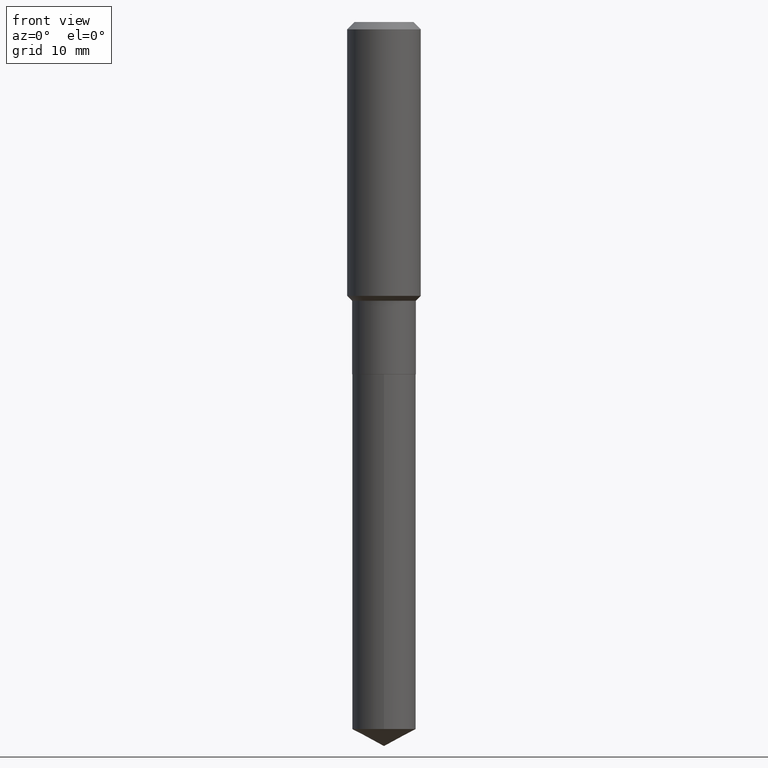
[diagram: clean part render]
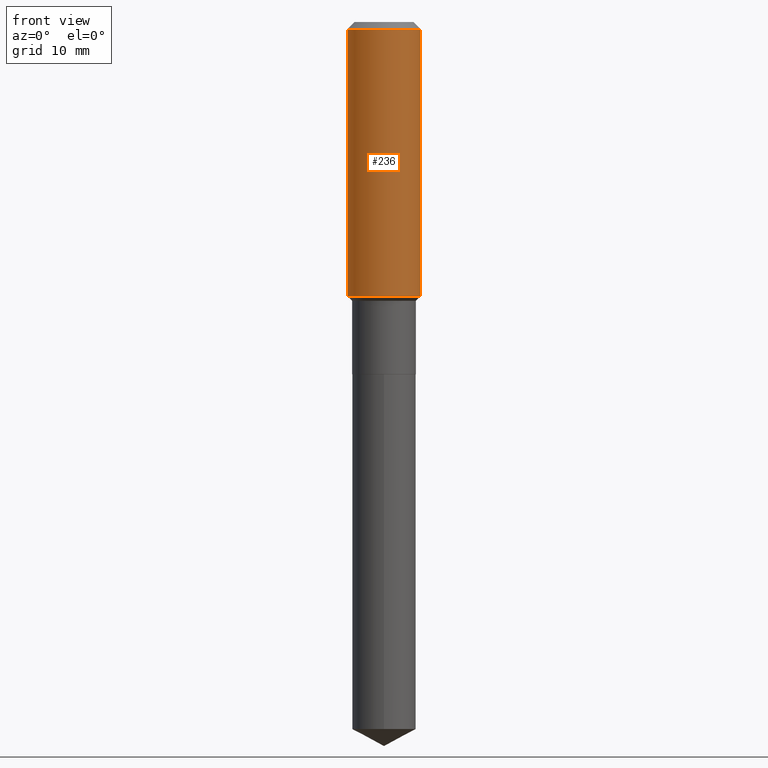
[diagram: same view with one face highlighted and labeled with its STEP entity id]
A machine part, front view. The second image highlights one B-rep face of the part: STEP entity #236.
In plain terms, the highlighted cylindrical surface (partial cylindrical patch) has radius 5.9995 mm, axis along (-0, 0, 1).
Its self-contained STEP definition (entity closure, byte-faithful):
#8 = CARTESIAN_POINT ( 'NONE',  ( -0.2362000000000002153, -4.458151085218409431E-15, -1.757549999999999057 ) ) ;
#18 = LINE ( 'NONE', #474, #314 ) ;
#21 = AXIS2_PLACEMENT_3D ( 'NONE', #301, #117, #427 ) ;
#24 = CYLINDRICAL_SURFACE ( 'NONE', #83, 0.2362000000000001043 ) ;
#42 = LINE ( 'NONE', #364, #277 ) ;
#67 = CIRCLE ( 'NONE', #21, 0.2361999999999999933 ) ;
#71 = CARTESIAN_POINT ( 'NONE',  ( 4.298033700310684854E-29, -6.136453027083767403E-15, -1.757549999999999057 ) ) ;
#83 = AXIS2_PLACEMENT_3D ( 'NONE', #476, #377, #234 ) ;
#86 = CARTESIAN_POINT ( 'NONE',  ( 0.2361999999999999933, -1.814313362916447440E-15, -0.04724000000000028177 ) ) ;
#117 = DIRECTION ( 'NONE',  ( -2.445468806185136597E-29, 3.491481338843145583E-15, 1.000000000000000000 ) ) ;
#150 = DIRECTION ( 'NONE',  ( 1.000000000000000000, -6.982962677686266711E-15, 0.000000000000000000 ) ) ;
#171 = VERTEX_POINT ( 'NONE', #339 ) ;
#196 = FACE_OUTER_BOUND ( 'NONE', #391, .T. ) ;
#203 = VERTEX_POINT ( 'NONE', #317 ) ;
#217 = DIRECTION ( 'NONE',  ( -2.445468806185136597E-29, 3.491481338843145583E-15, 1.000000000000000000 ) ) ;
#234 = DIRECTION ( 'NONE',  ( 1.000000000000000000, -6.982962677686266711E-15, 4.876176775795935793E-29 ) ) ;
#236 = ADVANCED_FACE ( 'NONE', ( #196 ), #24, .T. ) ;
#245 = ORIENTED_EDGE ( 'NONE', *, *, #366, .F. ) ;
#246 = ORIENTED_EDGE ( 'NONE', *, *, #447, .T. ) ;
#277 = VECTOR ( 'NONE', #325, 39.37007874015748143 ) ;
#291 = EDGE_CURVE ( 'NONE', #171, #345, #67, .T. ) ;
#301 = CARTESIAN_POINT ( 'NONE',  ( 1.155239464041865506E-30, -1.649375784469511859E-16, -0.04724000000000028177 ) ) ;
#309 = DIRECTION ( 'NONE',  ( -2.445468806185136877E-29, 3.491481338843145188E-15, 1.000000000000000000 ) ) ;
#314 = VECTOR ( 'NONE', #309, 39.37007874015748143 ) ;
#317 = CARTESIAN_POINT ( 'NONE',  ( 0.2362000000000002153, -7.785828811553264717E-15, -1.757549999999999057 ) ) ;
#325 = DIRECTION ( 'NONE',  ( -2.445468806185136877E-29, 3.491481338843145188E-15, 1.000000000000000000 ) ) ;
#339 = CARTESIAN_POINT ( 'NONE',  ( -0.2361999999999999933, -1.472393360900001581E-15, -0.04724000000000028177 ) ) ;
#345 = VERTEX_POINT ( 'NONE', #86 ) ;
#364 = CARTESIAN_POINT ( 'NONE',  ( 0.2362000000000001043, -1.649375784469496920E-15, 1.151752954443000508E-29 ) ) ;
#366 = EDGE_CURVE ( 'NONE', #398, #171, #18, .T. ) ;
#377 = DIRECTION ( 'NONE',  ( -2.445468806185136597E-29, 3.491481338843145583E-15, 1.000000000000000000 ) ) ;
#391 = EDGE_LOOP ( 'NONE', ( #245, #435, #246, #475 ) ) ;
#394 = AXIS2_PLACEMENT_3D ( 'NONE', #71, #217, #150 ) ;
#398 = VERTEX_POINT ( 'NONE', #8 ) ;
#409 = EDGE_CURVE ( 'NONE', #398, #203, #419, .T. ) ;
#419 = CIRCLE ( 'NONE', #394, 0.2362000000000002153 ) ;
#427 = DIRECTION ( 'NONE',  ( 1.000000000000000000, -6.982962677686266711E-15, 0.000000000000000000 ) ) ;
#435 = ORIENTED_EDGE ( 'NONE', *, *, #409, .T. ) ;
#447 = EDGE_CURVE ( 'NONE', #203, #345, #42, .T. ) ;
#474 = CARTESIAN_POINT ( 'NONE',  ( -0.2362000000000001043, 1.678301941865357380E-15, -1.161852468318209317E-29 ) ) ;
#475 = ORIENTED_EDGE ( 'NONE', *, *, #291, .F. ) ;
#476 = CARTESIAN_POINT ( 'NONE',  ( 0.000000000000000000, 0.000000000000000000, 0.000000000000000000 ) ) ;